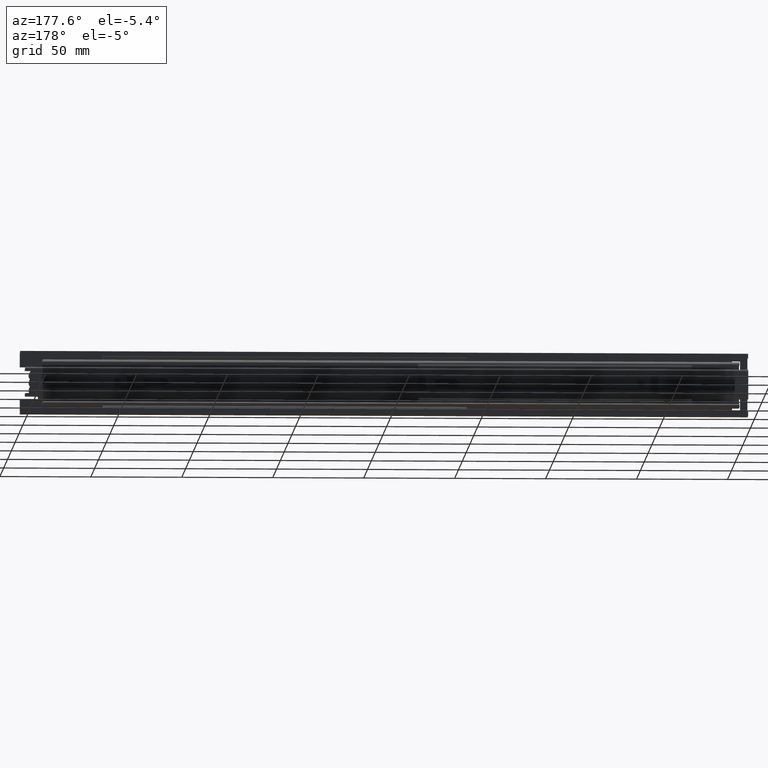
[diagram: clean part render]
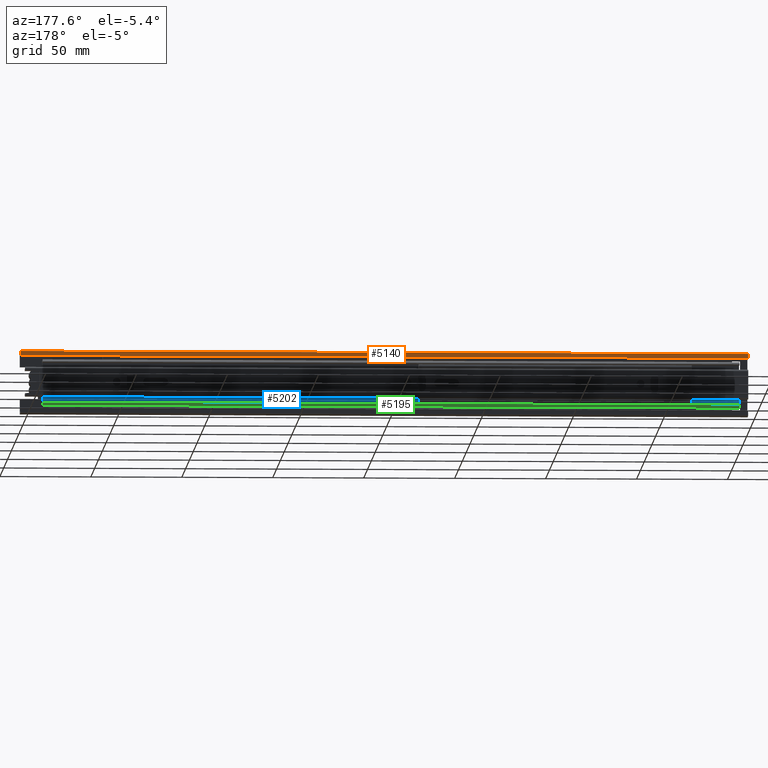
[diagram: same view with three faces highlighted in distinct colors, each labeled with its STEP entity id]
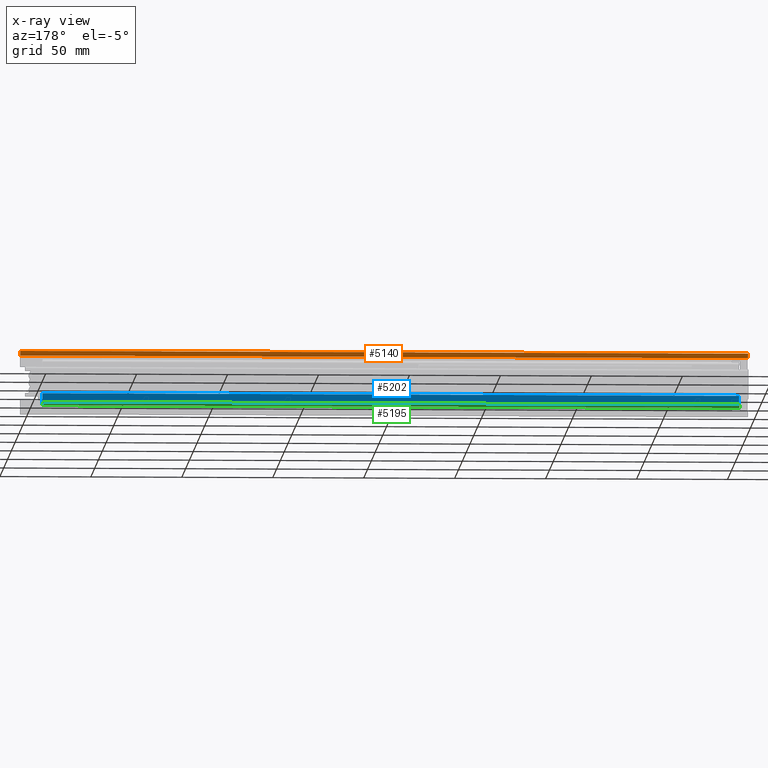
[diagram: x-ray of the same camera — body ghosted, the three highlighted faces saturated]
A machine part, auxiliary view with three faces highlighted in distinct colors.
The next image is the same camera in x-ray (body ghosted, the three faces saturated) — at least one of them is partly hidden behind the body in this view.
Their STEP definitions:

[orange] entity #5140 — the highlighted planar face has unit normal (0, 1, 0).
#348=FACE_OUTER_BOUND('',#638,.T.);
#638=EDGE_LOOP('',(#3950,#3951,#3952,#3953));
#1080=LINE('',#7994,#1618);
#1082=LINE('',#7998,#1620);
#1083=LINE('',#8000,#1621);
#1084=LINE('',#8001,#1622);
#1618=VECTOR('',#6468,400.);
#1620=VECTOR('',#6472,2.5);
#1621=VECTOR('',#6473,400.);
#1622=VECTOR('',#6474,2.5);
#2362=VERTEX_POINT('',#7991);
#2363=VERTEX_POINT('',#7993);
#2364=VERTEX_POINT('',#7997);
#2365=VERTEX_POINT('',#7999);
#2974=EDGE_CURVE('',#2363,#2362,#1080,.T.);
#2976=EDGE_CURVE('',#2364,#2362,#1082,.T.);
#2977=EDGE_CURVE('',#2365,#2364,#1083,.T.);
#2978=EDGE_CURVE('',#2363,#2365,#1084,.T.);
#3950=ORIENTED_EDGE('',*,*,#2974,.T.);
#3951=ORIENTED_EDGE('',*,*,#2976,.F.);
#3952=ORIENTED_EDGE('',*,*,#2977,.F.);
#3953=ORIENTED_EDGE('',*,*,#2978,.F.);
#4927=PLANE('',#5518);
#5140=ADVANCED_FACE('',(#348),#4927,.T.);
#5518=AXIS2_PLACEMENT_3D('',#7996,#6470,#6471);
#6468=DIRECTION('',(1.,0.,0.));
#6470=DIRECTION('center_axis',(0.,1.,8.88178419700125E-16));
#6471=DIRECTION('ref_axis',(0.,-8.88178419700125E-16,1.));
#6472=DIRECTION('',(0.,-8.88178419700125E-16,1.));
#6473=DIRECTION('',(1.,0.,0.));
#6474=DIRECTION('',(0.,8.88178419700125E-16,-1.));
#7991=CARTESIAN_POINT('',(200.,11.,17.));
#7993=CARTESIAN_POINT('',(-200.,11.,17.));
#7994=CARTESIAN_POINT('',(0.,11.,17.));
#7996=CARTESIAN_POINT('Origin',(0.,11.,14.5));
#7997=CARTESIAN_POINT('',(200.,11.,14.5));
#7998=CARTESIAN_POINT('',(200.,11.,14.5));
#7999=CARTESIAN_POINT('',(-200.,11.,14.5));
#8000=CARTESIAN_POINT('',(0.,11.,14.5));
#8001=CARTESIAN_POINT('',(-200.,11.,14.5));

[blue] entity #5202 — the highlighted planar face has unit normal (-0, 1, 0).
#410=FACE_OUTER_BOUND('',#729,.T.);
#729=EDGE_LOOP('',(#4379,#4380,#4381,#4382));
#1157=LINE('',#8213,#1695);
#1190=LINE('',#8303,#1728);
#1199=LINE('',#8320,#1737);
#1200=LINE('',#8322,#1738);
#1695=VECTOR('',#6687,5.9);
#1728=VECTOR('',#6770,5.9);
#1737=VECTOR('',#6795,383.);
#1738=VECTOR('',#6798,383.);
#2433=VERTEX_POINT('',#8210);
#2434=VERTEX_POINT('',#8212);
#2465=VERTEX_POINT('',#8300);
#2466=VERTEX_POINT('',#8302);
#3079=EDGE_CURVE('',#2433,#2434,#1157,.T.);
#3124=EDGE_CURVE('',#2465,#2466,#1190,.T.);
#3133=EDGE_CURVE('',#2433,#2466,#1199,.T.);
#3134=EDGE_CURVE('',#2434,#2465,#1200,.T.);
#4379=ORIENTED_EDGE('',*,*,#3133,.T.);
#4380=ORIENTED_EDGE('',*,*,#3124,.F.);
#4381=ORIENTED_EDGE('',*,*,#3134,.F.);
#4382=ORIENTED_EDGE('',*,*,#3079,.F.);
#4970=PLANE('',#5622);
#5202=ADVANCED_FACE('',(#410),#4970,.T.);
#5622=AXIS2_PLACEMENT_3D('',#8321,#6796,#6797);
#6687=DIRECTION('',(0.,5.64520182012791E-16,-1.));
#6770=DIRECTION('',(0.,-5.64520182012791E-16,1.));
#6795=DIRECTION('',(1.,0.,0.));
#6796=DIRECTION('center_axis',(0.,1.,5.64520182012791E-16));
#6797=DIRECTION('ref_axis',(0.,-5.77315972805081E-16,1.));
#6798=DIRECTION('',(1.,0.,0.));
#8210=CARTESIAN_POINT('',(-191.5,3.50000000000001,-5.55));
#8212=CARTESIAN_POINT('',(-191.5,3.50000000000001,-11.45));
#8213=CARTESIAN_POINT('',(-191.5,3.50000000000001,-11.45));
#8300=CARTESIAN_POINT('',(191.5,3.50000000000001,-11.45));
#8302=CARTESIAN_POINT('',(191.5,3.50000000000001,-5.55));
#8303=CARTESIAN_POINT('',(191.5,3.50000000000001,-11.45));
#8320=CARTESIAN_POINT('',(0.,3.50000000000001,-5.55));
#8321=CARTESIAN_POINT('Origin',(0.,3.50000000000001,-11.45));
#8322=CARTESIAN_POINT('',(0.,3.50000000000001,-11.45));

[green] entity #5195 — the highlighted cylindrical surface (edge-blend (fillet) strip) has radius 3.25 mm, axis along (1, -0, 0).
#122=CYLINDRICAL_SURFACE('',#5615,3.25);
#403=FACE_OUTER_BOUND('',#718,.T.);
#718=EDGE_LOOP('',(#4335,#4336,#4337,#4338));
#1193=LINE('',#8307,#1731);
#1194=LINE('',#8309,#1732);
#1731=VECTOR('',#6775,383.);
#1732=VECTOR('',#6778,383.);
#2049=CIRCLE('',#5591,3.25);
#2056=CIRCLE('',#5611,3.25);
#2438=VERTEX_POINT('',#8220);
#2439=VERTEX_POINT('',#8222);
#2460=VERTEX_POINT('',#8290);
#2461=VERTEX_POINT('',#8292);
#3084=EDGE_CURVE('',#2438,#2439,#2049,.T.);
#3119=EDGE_CURVE('',#2460,#2461,#2056,.T.);
#3127=EDGE_CURVE('',#2438,#2461,#1193,.T.);
#3128=EDGE_CURVE('',#2439,#2460,#1194,.T.);
#4335=ORIENTED_EDGE('',*,*,#3127,.T.);
#4336=ORIENTED_EDGE('',*,*,#3119,.F.);
#4337=ORIENTED_EDGE('',*,*,#3128,.F.);
#4338=ORIENTED_EDGE('',*,*,#3084,.F.);
#5195=ADVANCED_FACE('',(#403),#122,.T.);
#5591=AXIS2_PLACEMENT_3D('',#8223,#6694,#6695);
#5611=AXIS2_PLACEMENT_3D('',#8293,#6762,#6763);
#5615=AXIS2_PLACEMENT_3D('',#8308,#6776,#6777);
#6694=DIRECTION('center_axis',(-1.,0.,0.));
#6695=DIRECTION('ref_axis',(0.,-0.156295936387928,-0.987710271420026));
#6762=DIRECTION('center_axis',(1.,0.,0.));
#6763=DIRECTION('ref_axis',(0.,-0.156295936387928,-0.987710271420026));
#6775=DIRECTION('',(1.,0.,0.));
#6776=DIRECTION('center_axis',(1.,0.,0.));
#6777=DIRECTION('ref_axis',(0.,-0.156295936387928,-0.987710271420026));
#6778=DIRECTION('',(1.,0.,0.));
#8220=CARTESIAN_POINT('',(-191.5,10.806011825547,-11.2));
#8222=CARTESIAN_POINT('',(-191.5,7.59203820673923,-12.6100583821151));
#8223=CARTESIAN_POINT('Origin',(-191.5,8.1,-9.39999999999999));
#8290=CARTESIAN_POINT('',(191.5,7.59203820673923,-12.6100583821151));
#8292=CARTESIAN_POINT('',(191.5,10.806011825547,-11.2));
#8293=CARTESIAN_POINT('Origin',(191.5,8.1,-9.39999999999999));
#8307=CARTESIAN_POINT('',(0.,10.806011825547,-11.2));
#8308=CARTESIAN_POINT('Origin',(0.,8.1,-9.39999999999999));
#8309=CARTESIAN_POINT('',(0.,7.59203820673923,-12.6100583821151));